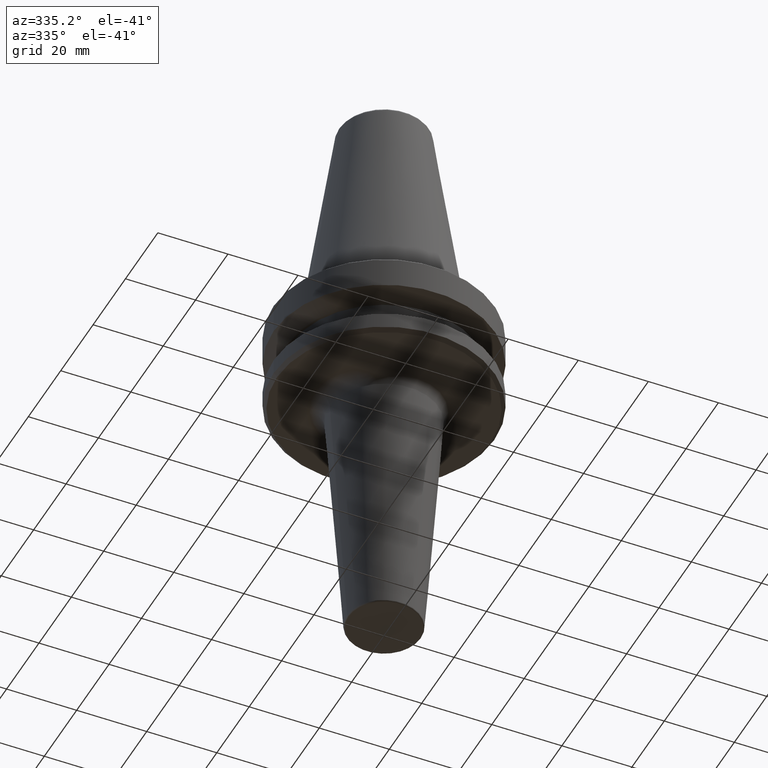
[diagram: clean part render]
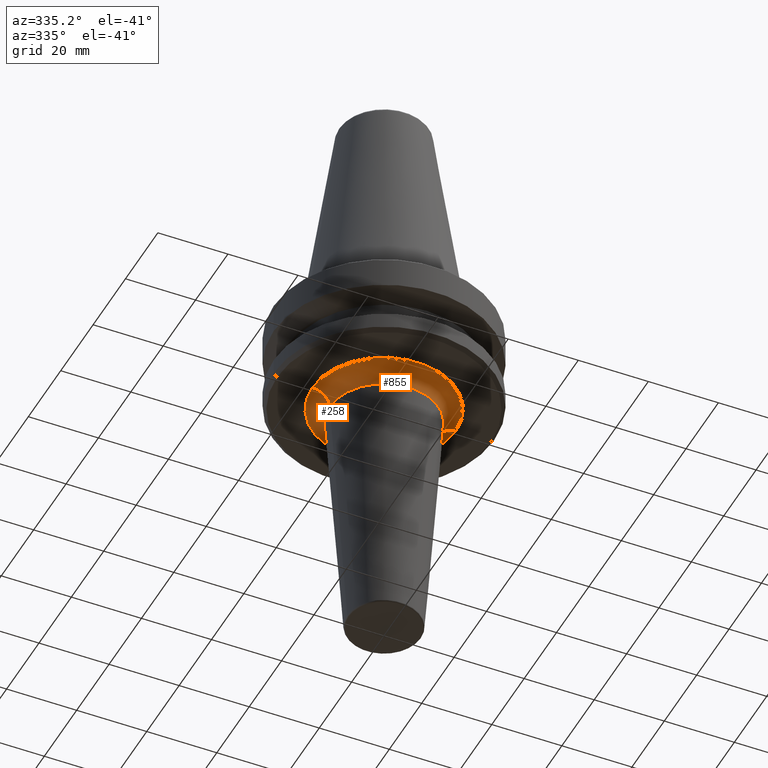
[diagram: same view with one multi-face feature highlighted, each face labeled with its STEP entity id]
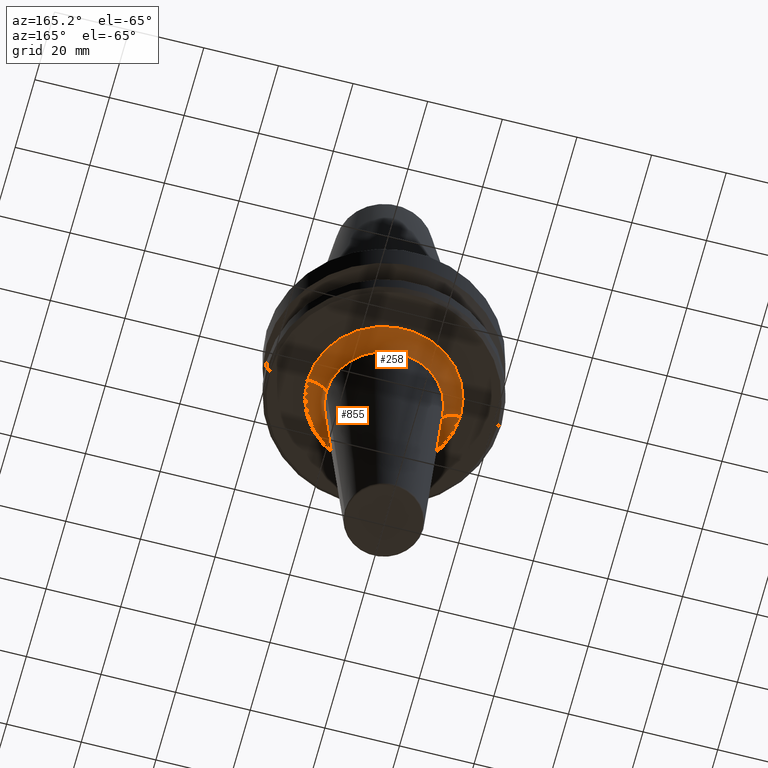
[diagram: same view with one multi-face feature highlighted, each face labeled with its STEP entity id]
A machine part, auxiliary view. The highlighted faces form ONE feature: a constant-radius fillet chain: 2 tangent blend faces with common blend radius 5 mm. The faces share edges in the B-rep.
A second angle (auxiliary view) of the same feature is appended — it is thin or edge-on in the first view.
Their STEP definitions:
[1] entity #855 (Torus):
#4 = DIRECTION ( 'NONE',  ( -0.0000000000000000000, -0.0000000000000000000, 1.000000000000000000 ) ) ;
#34 = EDGE_CURVE ( 'NONE', #153, #744, #120, .T. ) ;
#66 = CARTESIAN_POINT ( 'NONE',  ( -20.48742072718592100, 2.508985421633337900E-015, -97.40000000000800600 ) ) ;
#78 = DIRECTION ( 'NONE',  ( -0.0000000000000000000, -0.0000000000000000000, 1.000000000000000000 ) ) ;
#110 = CARTESIAN_POINT ( 'NONE',  ( 20.48742072718592100, 0.0000000000000000000, -97.40000000000800600 ) ) ;
#115 = EDGE_LOOP ( 'NONE', ( #375, #548, #562, #402 ) ) ;
#120 = CIRCLE ( 'NONE', #443, 20.48742072718592100 ) ;
#127 = DIRECTION ( 'NONE',  ( 0.0000000000000000000, 0.0000000000000000000, -1.000000000000000000 ) ) ;
#153 = VERTEX_POINT ( 'NONE', #547 ) ;
#166 = EDGE_CURVE ( 'NONE', #153, #539, #633, .T. ) ;
#253 = CARTESIAN_POINT ( 'NONE',  ( 20.48742072718592100, 0.0000000000000000000, -92.40000000000800600 ) ) ;
#269 = DIRECTION ( 'NONE',  ( -1.000000000000000000, 1.224646799147352500E-016, 0.0000000000000000000 ) ) ;
#308 = DIRECTION ( 'NONE',  ( 1.000000000000000000, 0.0000000000000000000, 0.0000000000000000000 ) ) ;
#342 = CARTESIAN_POINT ( 'NONE',  ( 0.0000000000000000000, 0.0000000000000000000, -92.40000000000800600 ) ) ;
#356 = AXIS2_PLACEMENT_3D ( 'NONE', #494, #4, #570 ) ;
#375 = ORIENTED_EDGE ( 'NONE', *, *, #34, .F. ) ;
#402 = ORIENTED_EDGE ( 'NONE', *, *, #524, .F. ) ;
#409 = DIRECTION ( 'NONE',  ( 1.000000000000000000, 0.0000000000000000000, 0.0000000000000000000 ) ) ;
#443 = AXIS2_PLACEMENT_3D ( 'NONE', #342, #841, #308 ) ;
#481 = CARTESIAN_POINT ( 'NONE',  ( 0.0000000000000000000, 0.0000000000000000000, -97.40000000000800600 ) ) ;
#485 = AXIS2_PLACEMENT_3D ( 'NONE', #481, #78, #409 ) ;
#494 = CARTESIAN_POINT ( 'NONE',  ( 0.0000000000000000000, 0.0000000000000000000, -97.04555044078095700 ) ) ;
#511 = VERTEX_POINT ( 'NONE', #852 ) ;
#524 = EDGE_CURVE ( 'NONE', #744, #511, #701, .T. ) ;
#539 = VERTEX_POINT ( 'NONE', #930 ) ;
#540 = AXIS2_PLACEMENT_3D ( 'NONE', #110, #586, #127 ) ;
#547 = CARTESIAN_POINT ( 'NONE',  ( -20.48742072718592100, 2.508985421633337900E-015, -92.40000000000800600 ) ) ;
#548 = ORIENTED_EDGE ( 'NONE', *, *, #166, .T. ) ;
#562 = ORIENTED_EDGE ( 'NONE', *, *, #932, .T. ) ;
#570 = DIRECTION ( 'NONE',  ( 1.000000000000000000, 0.0000000000000000000, 0.0000000000000000000 ) ) ;
#586 = DIRECTION ( 'NONE',  ( 0.0000000000000000000, -1.000000000000000000, 0.0000000000000000000 ) ) ;
#626 = DIRECTION ( 'NONE',  ( 1.224646799147353200E-016, 1.000000000000000000, 0.0000000000000000000 ) ) ;
#633 = CIRCLE ( 'NONE', #989, 5.000000000000004400 ) ;
#701 = CIRCLE ( 'NONE', #540, 5.000000000000004400 ) ;
#744 = VERTEX_POINT ( 'NONE', #253 ) ;
#832 = FACE_OUTER_BOUND ( 'NONE', #115, .T. ) ;
#841 = DIRECTION ( 'NONE',  ( -0.0000000000000000000, -0.0000000000000000000, 1.000000000000000000 ) ) ;
#852 = CARTESIAN_POINT ( 'NONE',  ( 15.50000000000000400, 0.0000000000000000000, -97.04555044078095700 ) ) ;
#855 = ADVANCED_FACE ( 'NONE', ( #832 ), #1022, .F. ) ;
#862 = CIRCLE ( 'NONE', #356, 15.50000000000000400 ) ;
#930 = CARTESIAN_POINT ( 'NONE',  ( -15.50000000000000400, 2.203593980155867900E-015, -97.04555044078095700 ) ) ;
#932 = EDGE_CURVE ( 'NONE', #539, #511, #862, .T. ) ;
#989 = AXIS2_PLACEMENT_3D ( 'NONE', #66, #626, #269 ) ;
#1022 = TOROIDAL_SURFACE ( 'NONE', #485, 20.48742072718592100, 5.000000000000002700 ) ;
[2] entity #258 (Torus):
#22 = EDGE_CURVE ( 'NONE', #744, #153, #984, .T. ) ;
#24 = EDGE_CURVE ( 'NONE', #511, #539, #551, .T. ) ;
#66 = CARTESIAN_POINT ( 'NONE',  ( -20.48742072718592100, 2.508985421633337900E-015, -97.40000000000800600 ) ) ;
#94 = ORIENTED_EDGE ( 'NONE', *, *, #24, .T. ) ;
#110 = CARTESIAN_POINT ( 'NONE',  ( 20.48742072718592100, 0.0000000000000000000, -97.40000000000800600 ) ) ;
#127 = DIRECTION ( 'NONE',  ( 0.0000000000000000000, 0.0000000000000000000, -1.000000000000000000 ) ) ;
#153 = VERTEX_POINT ( 'NONE', #547 ) ;
#166 = EDGE_CURVE ( 'NONE', #153, #539, #633, .T. ) ;
#253 = CARTESIAN_POINT ( 'NONE',  ( 20.48742072718592100, 0.0000000000000000000, -92.40000000000800600 ) ) ;
#258 = ADVANCED_FACE ( 'NONE', ( #300 ), #606, .F. ) ;
#269 = DIRECTION ( 'NONE',  ( -1.000000000000000000, 1.224646799147352500E-016, 0.0000000000000000000 ) ) ;
#300 = FACE_OUTER_BOUND ( 'NONE', #525, .T. ) ;
#336 = ORIENTED_EDGE ( 'NONE', *, *, #22, .F. ) ;
#414 = CARTESIAN_POINT ( 'NONE',  ( 0.0000000000000000000, 0.0000000000000000000, -97.40000000000800600 ) ) ;
#421 = CARTESIAN_POINT ( 'NONE',  ( 0.0000000000000000000, 0.0000000000000000000, -97.04555044078095700 ) ) ;
#424 = DIRECTION ( 'NONE',  ( -0.0000000000000000000, -0.0000000000000000000, 1.000000000000000000 ) ) ;
#445 = DIRECTION ( 'NONE',  ( -0.0000000000000000000, -0.0000000000000000000, 1.000000000000000000 ) ) ;
#462 = DIRECTION ( 'NONE',  ( -0.0000000000000000000, -0.0000000000000000000, 1.000000000000000000 ) ) ;
#465 = AXIS2_PLACEMENT_3D ( 'NONE', #838, #445, #818 ) ;
#511 = VERTEX_POINT ( 'NONE', #852 ) ;
#524 = EDGE_CURVE ( 'NONE', #744, #511, #701, .T. ) ;
#525 = EDGE_LOOP ( 'NONE', ( #913, #336, #646, #94 ) ) ;
#539 = VERTEX_POINT ( 'NONE', #930 ) ;
#540 = AXIS2_PLACEMENT_3D ( 'NONE', #110, #586, #127 ) ;
#547 = CARTESIAN_POINT ( 'NONE',  ( -20.48742072718592100, 2.508985421633337900E-015, -92.40000000000800600 ) ) ;
#551 = CIRCLE ( 'NONE', #740, 15.50000000000000400 ) ;
#586 = DIRECTION ( 'NONE',  ( 0.0000000000000000000, -1.000000000000000000, 0.0000000000000000000 ) ) ;
#606 = TOROIDAL_SURFACE ( 'NONE', #726, 20.48742072718592100, 5.000000000000002700 ) ;
#626 = DIRECTION ( 'NONE',  ( 1.224646799147353200E-016, 1.000000000000000000, 0.0000000000000000000 ) ) ;
#633 = CIRCLE ( 'NONE', #989, 5.000000000000004400 ) ;
#646 = ORIENTED_EDGE ( 'NONE', *, *, #524, .T. ) ;
#701 = CIRCLE ( 'NONE', #540, 5.000000000000004400 ) ;
#726 = AXIS2_PLACEMENT_3D ( 'NONE', #414, #424, #934 ) ;
#740 = AXIS2_PLACEMENT_3D ( 'NONE', #421, #462, #1019 ) ;
#744 = VERTEX_POINT ( 'NONE', #253 ) ;
#818 = DIRECTION ( 'NONE',  ( 1.000000000000000000, 0.0000000000000000000, 0.0000000000000000000 ) ) ;
#838 = CARTESIAN_POINT ( 'NONE',  ( 0.0000000000000000000, 0.0000000000000000000, -92.40000000000800600 ) ) ;
#852 = CARTESIAN_POINT ( 'NONE',  ( 15.50000000000000400, 0.0000000000000000000, -97.04555044078095700 ) ) ;
#913 = ORIENTED_EDGE ( 'NONE', *, *, #166, .F. ) ;
#930 = CARTESIAN_POINT ( 'NONE',  ( -15.50000000000000400, 2.203593980155867900E-015, -97.04555044078095700 ) ) ;
#934 = DIRECTION ( 'NONE',  ( 1.000000000000000000, 0.0000000000000000000, 0.0000000000000000000 ) ) ;
#984 = CIRCLE ( 'NONE', #465, 20.48742072718592100 ) ;
#989 = AXIS2_PLACEMENT_3D ( 'NONE', #66, #626, #269 ) ;
#1019 = DIRECTION ( 'NONE',  ( 1.000000000000000000, 0.0000000000000000000, 0.0000000000000000000 ) ) ;